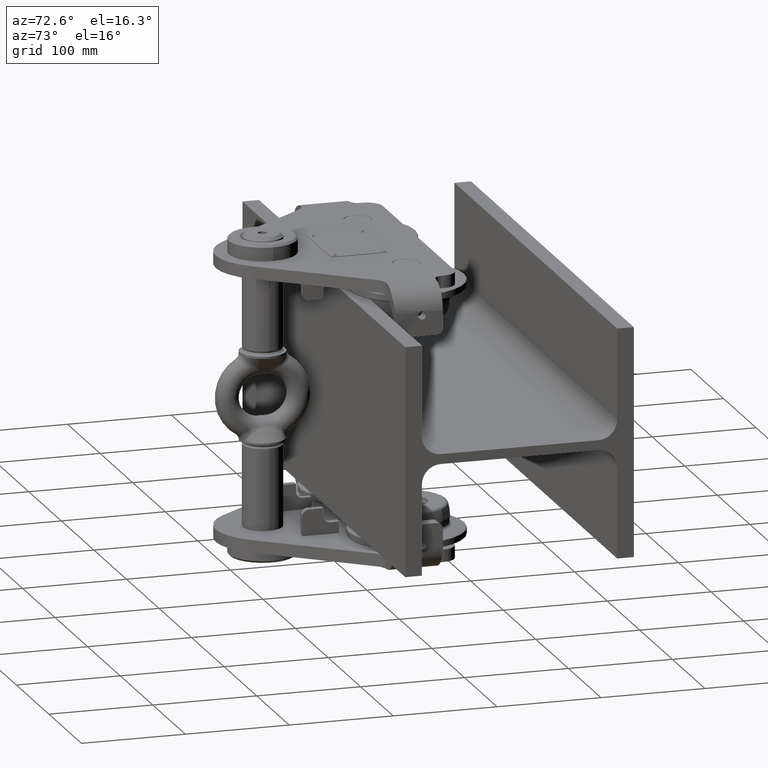
[diagram: clean part render]
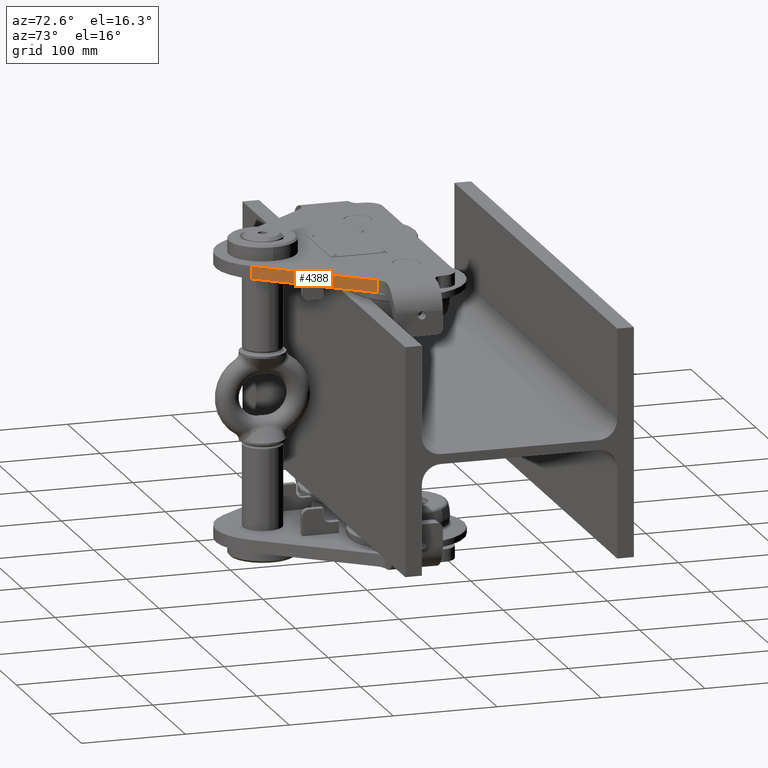
[diagram: same view with one face highlighted and labeled with its STEP entity id]
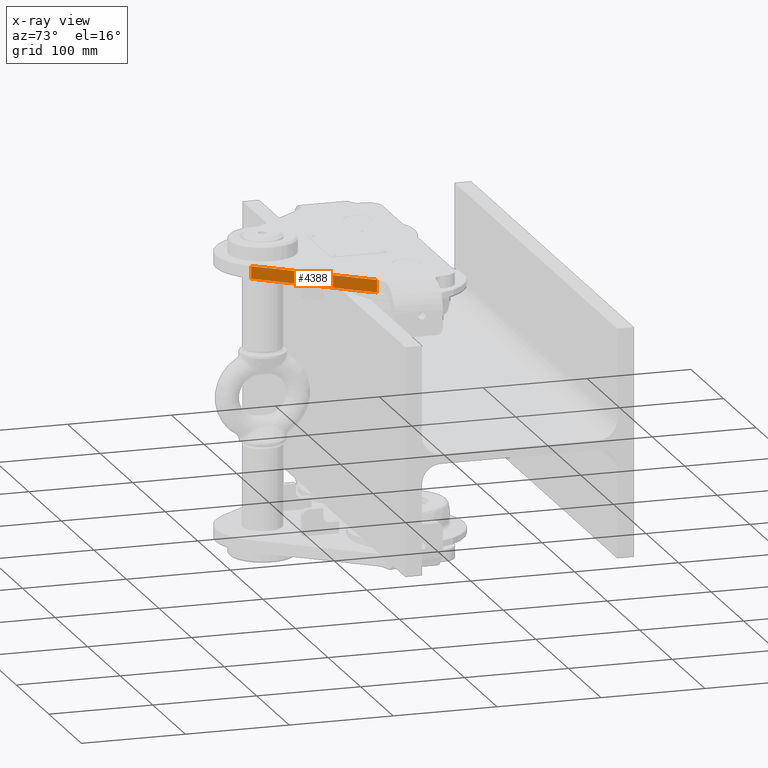
[diagram: x-ray of the same camera — body ghosted, the highlighted face saturated]
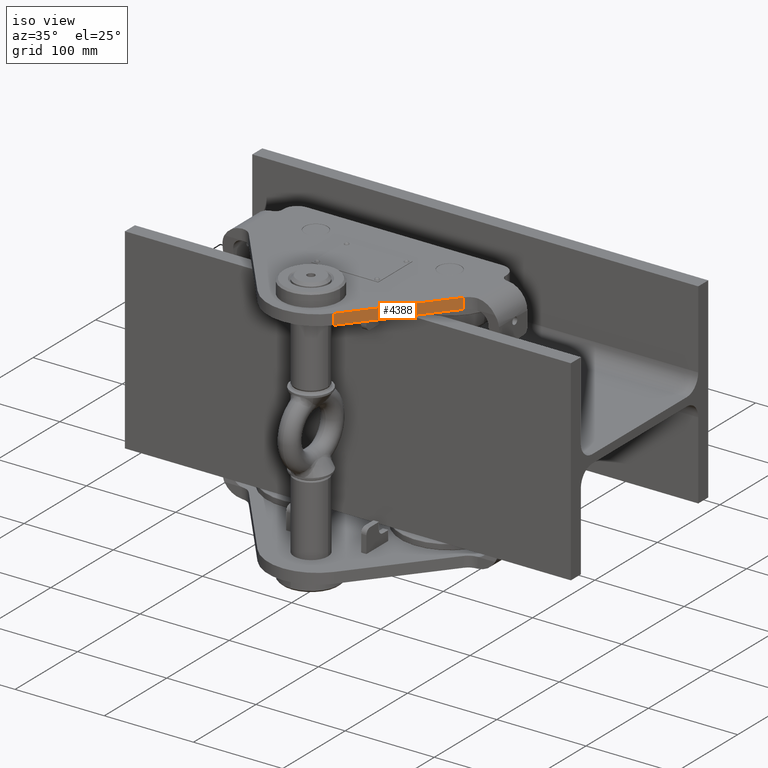
[diagram: same view with one face highlighted and labeled with its STEP entity id]
A machine part, auxiliary view. The second image highlights one B-rep face of the part: STEP entity #4388.
The next image is the same camera in x-ray: the body ghosted, the highlighted face saturated — about 0% of this face is hidden behind the body in this view.
A second angle (iso view) of the same face is appended — the face is thin or edge-on in the first view.
In plain terms, the highlighted planar face has unit normal (0.7803, -0.6255, -0).
Its self-contained STEP definition (entity closure, byte-faithful):
#961 = VERTEX_POINT ( 'NONE', #26627 ) ;
#1800 = EDGE_CURVE ( 'NONE', #961, #10581, #21678, .T. ) ;
#2656 = VECTOR ( 'NONE', #22680, 1000.000000000000000 ) ;
#4388 = ADVANCED_FACE ( 'NONE', ( #32168 ), #14760, .T. ) ;
#5977 = CARTESIAN_POINT ( 'NONE',  ( 120.4964843667722400, -96.61803319927649600, 89.99999999999982900 ) ) ;
#6871 = VECTOR ( 'NONE', #26216, 1000.000000000000100 ) ;
#6972 = ORIENTED_EDGE ( 'NONE', *, *, #22649, .F. ) ;
#10442 = CARTESIAN_POINT ( 'NONE',  ( 67.32073716276941900, -162.9535669285791400, 124.9999999999998000 ) ) ;
#10581 = VERTEX_POINT ( 'NONE', #18057 ) ;
#12036 = VERTEX_POINT ( 'NONE', #12745 ) ;
#12063 = EDGE_LOOP ( 'NONE', ( #31156, #22288, #35538, #6972 ) ) ;
#12498 = EDGE_CURVE ( 'NONE', #38153, #12036, #18799, .T. ) ;
#12536 = AXIS2_PLACEMENT_3D ( 'NONE', #5977, #36039, #15032 ) ;
#12745 = CARTESIAN_POINT ( 'NONE',  ( 42.91389644517583700, -193.4005449359846400, 136.9999999999991200 ) ) ;
#13582 = VECTOR ( 'NONE', #17596, 1000.000000000000000 ) ;
#14760 = PLANE ( 'NONE',  #12536 ) ;
#15032 = DIRECTION ( 'NONE',  ( 0.6254644533815459900, 0.7802526626395606100, 1.969967990825146400E-016 ) ) ;
#15474 = LINE ( 'NONE', #10442, #19722 ) ;
#16872 = DIRECTION ( 'NONE',  ( -0.6254644533815458800, -0.7802526626395606100, -1.969967990825146100E-016 ) ) ;
#16987 = CARTESIAN_POINT ( 'NONE',  ( 42.91389644517583700, -193.4005449359850400, 124.9999999999997200 ) ) ;
#17596 = DIRECTION ( 'NONE',  ( 5.512308538268376100E-017, -2.966658630385585500E-016, 1.000000000000000000 ) ) ;
#18057 = CARTESIAN_POINT ( 'NONE',  ( 120.4964843667722400, -96.61803319927648200, 136.9999999999996900 ) ) ;
#18799 = LINE ( 'NONE', #28736, #2656 ) ;
#19234 = LINE ( 'NONE', #25821, #6871 ) ;
#19722 = VECTOR ( 'NONE', #16872, 1000.000000000000000 ) ;
#20524 = CARTESIAN_POINT ( 'NONE',  ( 120.4964843667722400, -96.61803319927649600, 89.99999999999982900 ) ) ;
#21678 = LINE ( 'NONE', #20524, #13582 ) ;
#22288 = ORIENTED_EDGE ( 'NONE', *, *, #35730, .F. ) ;
#22649 = EDGE_CURVE ( 'NONE', #961, #38153, #15474, .T. ) ;
#22680 = DIRECTION ( 'NONE',  ( 5.512308538268376100E-017, -2.966658630385585500E-016, 1.000000000000000000 ) ) ;
#25821 = CARTESIAN_POINT ( 'NONE',  ( 120.4964843667722400, -96.61803319927648200, 136.9999999999996900 ) ) ;
#26216 = DIRECTION ( 'NONE',  ( 0.6254644533815461000, 0.7802526626395605000, 1.969967990825157200E-016 ) ) ;
#26627 = CARTESIAN_POINT ( 'NONE',  ( 120.4964843667722400, -96.61803319927648200, 124.9999999999997400 ) ) ;
#28736 = CARTESIAN_POINT ( 'NONE',  ( 42.91389644517583700, -193.4005449359850700, 89.99999999999981500 ) ) ;
#31156 = ORIENTED_EDGE ( 'NONE', *, *, #1800, .T. ) ;
#32168 = FACE_OUTER_BOUND ( 'NONE', #12063, .T. ) ;
#35538 = ORIENTED_EDGE ( 'NONE', *, *, #12498, .F. ) ;
#35730 = EDGE_CURVE ( 'NONE', #12036, #10581, #19234, .T. ) ;
#36039 = DIRECTION ( 'NONE',  ( 0.7802526626395606100, -0.6254644533815459900, -2.285638860051244100E-016 ) ) ;
#38153 = VERTEX_POINT ( 'NONE', #16987 ) ;